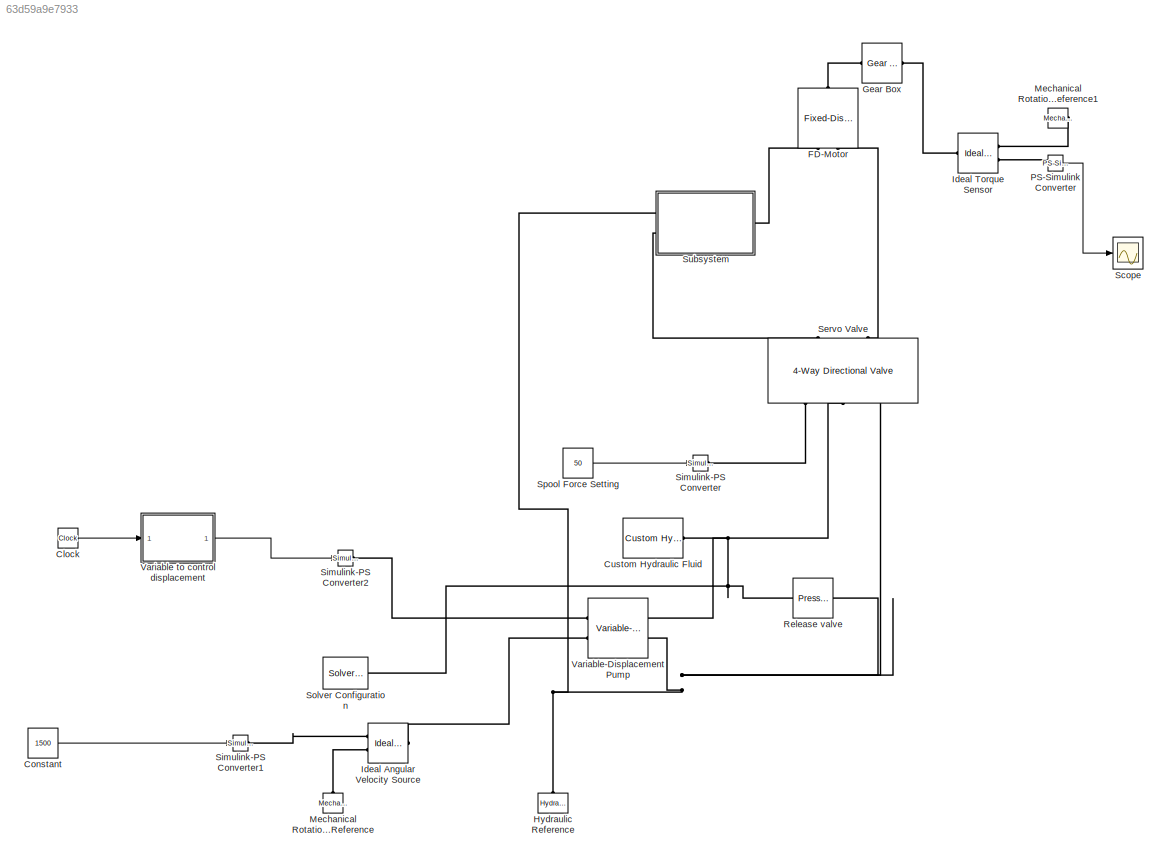
MODEL slx_63d59a9e7933
KIND model
CONFIG AbsTol = 1e-3
CONFIG EnableMultiTasking = off
CONFIG FixedStep = auto
CONFIG MaxStep = auto
CONFIG MinStep = auto
CONFIG RelTol = 1e-3
CONFIG SampleTimeConstraint = Unconstrained
CONFIG SolverName = VariableStepAuto
CONFIG StartTime = 0.0
CONFIG StopTime = 10.0
BLOCK [Clock] Clock
BLOCK [Constant] Constant
  Value = 1500
BLOCK [Reference] Custom Hydraulic Fluid  REF=fl_lib/Hydraulic/Hydraulic Utilities/Custom Hydraulic
Fluid
  Ports = [0, 0, 0, 0, 0, 0, 1]
  SourceBlock = fl_lib/Hydraulic/Hydraulic Utilities/Custom Hydraulic\nFluid
  SourceProductBaseCode = PW,SS,VE
  SourceType = Custom Hydraulic\nFluid
BLOCK [Reference] FD-Motor  REF=sh_lib/Pumps and Motors/Fixed-Displacement
Motor
  NameLocation = right
  Ports = [0, 0, 0, 0, 0, 2, 1]
  SourceBlock = sh_lib/Pumps and Motors/Fixed-Displacement\nMotor
  SourceProductBaseCode = SH
  SourceType = Fixed-Displacement\nMotor
BLOCK [Reference] Gear Box  REF=fl_lib/Mechanical/Mechanisms/Gear Box
  Ports = [0, 0, 0, 0, 0, 1, 1]
  SourceBlock = fl_lib/Mechanical/Mechanisms/Gear Box
  SourceProductBaseCode = PW,SS,VE
  SourceType = Gear Box
BLOCK [Reference] Hydraulic Reference  REF=fl_lib/Hydraulic/Hydraulic Elements/Hydraulic Reference
  Ports = [0, 0, 0, 0, 0, 1]
  SourceBlock = fl_lib/Hydraulic/Hydraulic Elements/Hydraulic Reference
  SourceProductBaseCode = PW,SS,VE
  SourceType = Hydraulic Reference
BLOCK [Reference] Ideal Angular Velocity Source  REF=fl_lib/Mechanical/Mechanical Sources/Ideal Angular
Velocity Source
  Ports = [0, 0, 0, 0, 0, 1, 2]
  SourceBlock = fl_lib/Mechanical/Mechanical Sources/Ideal Angular\nVelocity Source
  SourceProductBaseCode = PW,SS,VE
  SourceType = Ideal Angular\nVelocity Source
BLOCK [Reference] Ideal Torque Sensor  REF=fl_lib/Mechanical/Mechanical Sensors/Ideal Torque Sensor
  Ports = [0, 0, 0, 0, 0, 1, 2]
  SourceBlock = fl_lib/Mechanical/Mechanical Sensors/Ideal Torque Sensor
  SourceProductBaseCode = PW,SS,VE
  SourceType = Ideal Torque Sensor
BLOCK [Reference] Mechanical Rotational Reference  REF=fl_lib/Mechanical/Rotational Elements/Mechanical
Rotational Reference
  NameLocation = right
  Ports = [0, 0, 0, 0, 0, 1]
  SourceBlock = fl_lib/Mechanical/Rotational Elements/Mechanical\nRotational Reference
  SourceProductBaseCode = PW,SS,VE
  SourceType = Mechanical\nRotational Reference
BLOCK [Reference] Mechanical Rotational Reference1  REF=fl_lib/Mechanical/Rotational Elements/Mechanical
Rotational Reference
  NameLocation = top
  Ports = [0, 0, 0, 0, 0, 1]
  SourceBlock = fl_lib/Mechanical/Rotational Elements/Mechanical\nRotational Reference
  SourceProductBaseCode = PW,SS,VE
  SourceType = Mechanical\nRotational Reference
BLOCK [Reference] PS-Simulink Converter  REF=nesl_utility/PS-Simulink
Converter
  Ports = [0, 1, 0, 0, 0, 1]
  SourceBlock = nesl_utility/PS-Simulink\nConverter
  SourceProductBaseCode = SS,PW,VE
  SourceType = PS-Simulink\nConverter
BLOCK [Reference] Release valve  REF=sh_lib/Valves/Pressure Control
Valves/Pressure Relief
Valve
  Ports = [0, 0, 0, 0, 0, 1, 1]
  SourceBlock = sh_lib/Valves/Pressure Control\nValves/Pressure Relief\nValve
  SourceProductBaseCode = SH
  SourceType = Pressure Relief\nValve
BLOCK [Scope] Scope
  Floating = off
  NumInputPorts = 1
  Ports = [1]
  ScopeSpecificationString = Simulink.scopes.TimeScopeBlockCfg('CurrentConfiguration', extmgr.ConfigurationSet(extmgr.Configuration('Core','General UI',true),extmgr.Configuration('Core','Source UI',true),extmgr.Configuration('Sources','WiredSimulink',true),extmgr.Configuration('Visuals','Time Domain',true,'SerializedDisplays',{struct('MinYLimReal','-4987.74326','MaxYLimReal','45443.4167','YLabelReal','','MinYLimMag','  0.0000...<+1363ch>
BLOCK [Reference] Servo Valve  REF=sh_lib/Valves/Directional Valves/4-Way Directional
Valve
  NameLocation = right
  Ports = [0, 0, 0, 0, 0, 2, 3]
  SourceBlock = sh_lib/Valves/Directional Valves/4-Way Directional\nValve
  SourceProductBaseCode = SH
  SourceType = 4-Way Directional\nValve
BLOCK [Reference] Simulink-PS Converter  REF=nesl_utility/Simulink-PS
Converter
  Ports = [1, 0, 0, 0, 0, 0, 1]
  SourceBlock = nesl_utility/Simulink-PS\nConverter
  SourceProductBaseCode = SS,PW,VE
  SourceType = Simulink-PS\nConverter
BLOCK [Reference] Simulink-PS Converter1  REF=nesl_utility/Simulink-PS
Converter
  Ports = [1, 0, 0, 0, 0, 0, 1]
  SourceBlock = nesl_utility/Simulink-PS\nConverter
  SourceProductBaseCode = SS,PW,VE
  SourceType = Simulink-PS\nConverter
BLOCK [Reference] Simulink-PS Converter2  REF=nesl_utility/Simulink-PS
Converter
  Ports = [1, 0, 0, 0, 0, 0, 1]
  SourceBlock = nesl_utility/Simulink-PS\nConverter
  SourceProductBaseCode = SS,PW,VE
  SourceType = Simulink-PS\nConverter
BLOCK [Reference] Solver Configuration  REF=nesl_utility/Solver
Configuration
  Ports = [0, 0, 0, 0, 0, 0, 1]
  SourceBlock = nesl_utility/Solver\nConfiguration
  SourceProductBaseCode = SS,PW,VE
  SourceType = Solver\nConfiguration
BLOCK [Constant] Spool Force Setting
  Value = 50
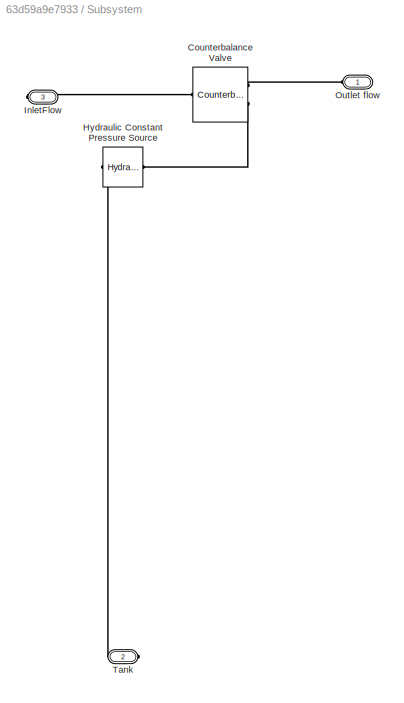
BLOCK [SubSystem] Subsystem
  NameLocation = top
  Ports = [0, 0, 0, 0, 0, 1, 2]
  RequestExecContextInheritance = off
BLOCK [Reference] Subsystem/Counterbalance Valve  REF=sh_lib/Valves/Flow Control Valves/Counterbalance Valve
  Ports = [0, 0, 0, 0, 0, 2, 1]
  SourceBlock = sh_lib/Valves/Flow Control Valves/Counterbalance Valve
  SourceProductBaseCode = SH
  SourceType = Counterbalance Valve
BLOCK [Reference] Subsystem/Hydraulic Constant Pressure Source  REF=fl_lib/Hydraulic/Hydraulic Sources/Hydraulic Constant
Pressure Source
  Ports = [0, 0, 0, 0, 0, 1, 1]
  SourceBlock = fl_lib/Hydraulic/Hydraulic Sources/Hydraulic Constant\nPressure Source
  SourceProductBaseCode = PW,SS,VE
  SourceType = Hydraulic Constant\nPressure Source
BLOCK [PMIOPort] Subsystem/InletFlow
  NameLocation = top
  Port = 3
  Side = Right
BLOCK [PMIOPort] Subsystem/Outlet flow
  NameLocation = top
  Side = Left
BLOCK [PMIOPort] Subsystem/Tank
  Port = 2
  Side = Right
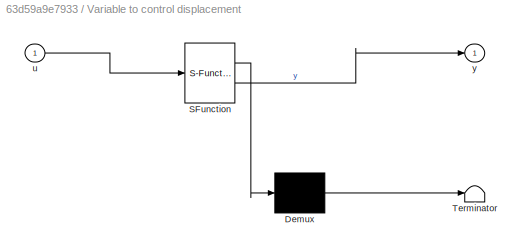
BLOCK [SubSystem] Variable to control displacement
  ErrorFcn = Stateflow.Translate.translate
  PermitHierarchicalResolution = ExplicitOnly
  Ports = [1, 1]
  RequestExecContextInheritance = off
  SFBlockType = MATLAB Function
  TreatAsAtomicUnit = on
BLOCK [Demux] Variable to control displacement/ Demux 
  Outputs = 1
  Ports = [1, 1]
BLOCK [S-Function] Variable to control displacement/ SFunction 
  EnableBusSupport = off
  FunctionName = sf_sfun
  PortCounts = [1 2]
  Ports = [1, 2]
  SFcnIsStateOwnerBlock = off
  SFunctionDeploymentMode = off
  Tag = Stateflow S-Function 2
BLOCK [Terminator] Variable to control displacement/ Terminator 
BLOCK [Inport] Variable to control displacement/u
BLOCK [Outport] Variable to control displacement/y
BLOCK [Reference] Variable-Displacement Pump  REF=sh_lib/Pumps and Motors/Variable-Displacement
Pump
  Ports = [0, 0, 0, 0, 0, 2, 2]
  SourceBlock = sh_lib/Pumps and Motors/Variable-Displacement\nPump
  SourceProductBaseCode = SH
  SourceType = Variable-Displacement\nPump
LINE Clock:1 -> Variable to control displacement:1
LINE Constant:1 -> Simulink-PS Converter1:1
LINE PS-Simulink Converter:1 -> Scope:1
LINE Spool Force Setting:1 -> Simulink-PS Converter:1
LINE Variable to control displacement:1 -> Simulink-PS Converter2:1
PNET net1: Custom Hydraulic Fluid:RConn1 -- Release valve:RConn1 -- Servo Valve:RConn2 -- Solver Configuration:RConn1 -- Variable-Displacement Pump:RConn1
PLINE FD-Motor:LConn1 -- Subsystem:LConn1
PLINE FD-Motor:LConn2 -- Servo Valve:LConn2
PLINE FD-Motor:RConn1 -- Gear Box:LConn1
PLINE Gear Box:RConn1 -- Ideal Torque Sensor:LConn1
PNET net2: Hydraulic Reference:LConn1 -- Release valve:LConn1 -- Servo Valve:RConn3 -- Subsystem:RConn1 -- Variable-Displacement Pump:RConn2
PLINE Ideal Angular Velocity Source:LConn1 -- Variable-Displacement Pump:LConn2
PLINE Ideal Angular Velocity Source:RConn1 -- Simulink-PS Converter1:RConn1
PLINE Ideal Angular Velocity Source:RConn2 -- Mechanical Rotational Reference:LConn1
PLINE Ideal Torque Sensor:RConn1 -- Mechanical Rotational Reference1:LConn1
PLINE Ideal Torque Sensor:RConn2 -- PS-Simulink Converter:LConn1
PLINE Servo Valve:LConn1 -- Subsystem:RConn2
PLINE Servo Valve:RConn1 -- Simulink-PS Converter:RConn1
PLINE Simulink-PS Converter2:RConn1 -- Variable-Displacement Pump:LConn1
PLINE Subsystem/Counterbalance Valve:LConn1 -- Subsystem/Outlet flow:RConn1
PLINE Subsystem/Counterbalance Valve:LConn2 -- Subsystem/Hydraulic Constant Pressure Source:LConn1
PLINE Subsystem/Counterbalance Valve:RConn1 -- Subsystem/InletFlow:RConn1
PLINE Subsystem/Hydraulic Constant Pressure Source:RConn1 -- Subsystem/Tank:RConn1
note: PNET lines group multi-terminal physical nets as a canonical sorted terminal list (undirected conserving connections); 2-terminal nets keep the pairwise PLINE form
CHART Variable to control displacement states=1 transitions=1
  STATE_LABEL 'eML_blk_kernel()'
  STATE_LABEL 'SCRIPT:\nfunction y = fcn(u)\n\ny = u;\n'
CHART  states=0 transitions=0
